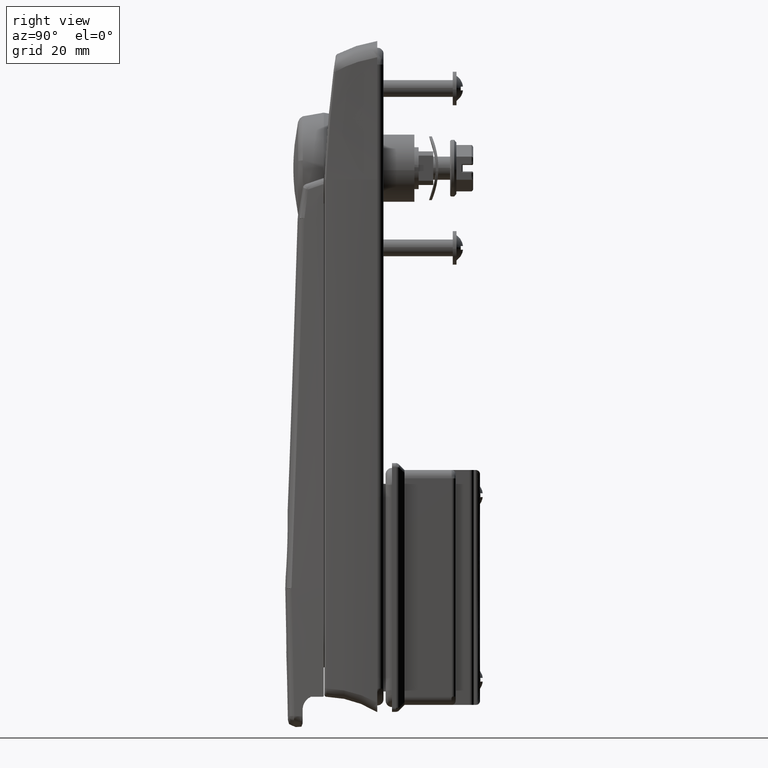
[diagram: clean part render]
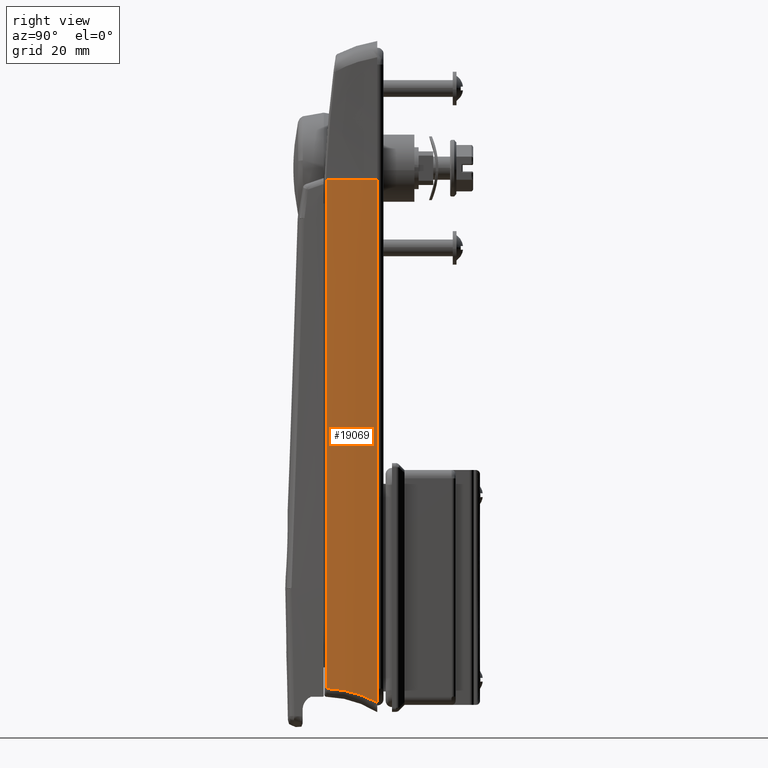
[diagram: same view with one face highlighted and labeled with its STEP entity id]
A machine part, right view. The second image highlights one B-rep face of the part: STEP entity #19069.
In plain terms, the highlighted face is a freeform B-spline surface patch.
Its self-contained STEP definition (entity closure, byte-faithful):
#13861=CARTESIAN_POINT('',(-12.188371007072320,-15.802942163122349,-2.741120213272555));
#13862=VERTEX_POINT('',#13861);
#13886=CARTESIAN_POINT('',(-12.187701613614900,-15.803056096875800,-2.741120213272561));
#13887=VERTEX_POINT('',#13886);
#13888=CARTESIAN_POINT('',(-12.187701613614900,-15.803056096875800,-2.741120213272561));
#13889=CARTESIAN_POINT('',(-12.187924744904020,-15.803018119763269,-2.741120213272592));
#13890=CARTESIAN_POINT('',(-12.188147876056499,-15.802980141845451,-2.741120213272589));
#13891=CARTESIAN_POINT('',(-12.188371007072320,-15.802942163122349,-2.741120213272555));
#13892=B_SPLINE_CURVE_WITH_KNOTS('',3,(#13888,#13889,#13890,#13891),.UNSPECIFIED.,.T.,.U.,(4,4),(0.0,0.988298195347934),.UNSPECIFIED.);
#13893=EDGE_CURVE('',#13887,#13862,#13892,.T.);
#13923=CARTESIAN_POINT('',(-12.188371007073281,-15.946216468357351,-124.013165944178400));
#13924=VERTEX_POINT('',#13923);
#13938=CARTESIAN_POINT('',(-12.188371007072320,-15.802942163122349,-2.741120213272555));
#13939=CARTESIAN_POINT('',(-12.188371007073281,-15.946216468357351,-124.013165944178400));
#13940=QUASI_UNIFORM_CURVE('',1,(#13938,#13939),.UNSPECIFIED.,.F.,.U.);
#13941=EDGE_CURVE('',#13862,#13924,#13940,.T.);
#14932=CARTESIAN_POINT('',(1.959946E-009,-17.197324400774551,-127.378146501003600));
#14933=VERTEX_POINT('',#14932);
#14934=CARTESIAN_POINT('',(-12.188371007073281,-15.946216468357321,-124.013165944178400));
#14935=CARTESIAN_POINT('',(-11.660827455770461,-16.036029767662569,-124.030964103327090));
#14936=CARTESIAN_POINT('',(-11.132955458493679,-16.121164954596281,-124.064189252755600));
#14937=CARTESIAN_POINT('',(-10.080264435861810,-16.281633326459581,-124.161406906020300));
#14938=CARTESIAN_POINT('',(-9.555016737635455,-16.357042679733748,-124.225402920556900));
#14939=CARTESIAN_POINT('',(-8.506778133798848,-16.498396268536769,-124.384463394395890));
#14940=CARTESIAN_POINT('',(-7.983400972286345,-16.564375247299640,-124.479646735960600));
#14941=CARTESIAN_POINT('',(-6.944199636809592,-16.686470696460152,-124.700453448080490));
#14942=CARTESIAN_POINT('',(-6.427779340531703,-16.742674503476810,-124.826142444685000));
#14943=CARTESIAN_POINT('',(-5.401393865853476,-16.845762879241590,-125.108314604520100));
#14944=CARTESIAN_POINT('',(-4.890822618799604,-16.892689360694298,-125.265037183447300));
#14945=CARTESIAN_POINT('',(-3.881828147917116,-16.977147357500542,-125.607815587584500));
#14946=CARTESIAN_POINT('',(-2.883918923575714,-17.052338034594779,-125.980140032348900));
#14947=CARTESIAN_POINT('',(-1.908298268536030,-17.110129690990330,-126.411653360038100));
#14948=CARTESIAN_POINT('',(-1.185078512856308,-17.147357534597809,-126.757758275037900));
#14949=CARTESIAN_POINT('',(-0.945403931325606,-17.158746899077649,-126.876889613689800));
#14950=CARTESIAN_POINT('',(-0.469964862930379,-17.179513047156181,-127.122162438189700));
#14951=CARTESIAN_POINT('',(-0.234016736042114,-17.188898889925220,-127.248394096373600));
#14952=CARTESIAN_POINT('',(2.613244E-009,-17.197324400774551,-127.378146501003600));
#14953=B_SPLINE_CURVE_WITH_KNOTS('',3,(#14934,#14935,#14936,#14937,#14938,#14939,#14940,#14941,#14942,#14943,#14944,#14945,#14946,#14947,#14948,#14949,#14950,#14951,#14952),.UNSPECIFIED.,.F.,.U.,(4,2,2,2,2,2,1,2,2,4),(0.0,0.125000000000000,0.250000000000000,0.375000000000000,0.500000000000000,0.625000000000000,0.750000000000000,0.875000000000000,0.937500000000000,1.0),.UNSPECIFIED.);
#14954=EDGE_CURVE('',#13924,#14933,#14953,.T.);
#18916=CARTESIAN_POINT('',(0.000000144554687,-17.050074719233201,-2.741120310253765));
#18917=VERTEX_POINT('',#18916);
#18918=CARTESIAN_POINT('',(-12.187701613614900,-15.803056096875791,-2.741120213272557));
#18919=CARTESIAN_POINT('',(-8.158804179944150,-16.488777101261011,-2.741120213272556));
#18920=CARTESIAN_POINT('',(-4.084294711901436,-16.905699582189211,-2.741120213272556));
#18921=CARTESIAN_POINT('',(0.000000144937946,-17.050074614967201,-2.741120213272555));
#18922=B_SPLINE_CURVE_WITH_KNOTS('',3,(#18918,#18919,#18920,#18921),.UNSPECIFIED.,.F.,.U.,(4,4),(0.033345218867171,1.0),.UNSPECIFIED.);
#18923=EDGE_CURVE('',#13887,#18917,#18922,.T.);
#19041=CARTESIAN_POINT('',(-12.188371007072320,-15.802942163122349,-2.741120213272555));
#19042=CARTESIAN_POINT('',(-8.159255494735811,-16.488730919824260,-2.741120213272555));
#19043=CARTESIAN_POINT('',(-4.084520911253708,-16.905691586307420,-2.741120213272555));
#19044=CARTESIAN_POINT('',(0.000000144937946,-17.050074614967201,-2.741120213272555));
#19045=CARTESIAN_POINT('',(-12.188371008639860,-15.852319925993420,-44.536069695091740));
#19046=CARTESIAN_POINT('',(-8.159255511487631,-16.538108680201962,-44.536069695091740));
#19047=CARTESIAN_POINT('',(-4.084520943526377,-16.955069346219620,-44.536069695091740));
#19048=CARTESIAN_POINT('',(0.000000097211731,-17.099452376474598,-44.536069695091740));
#19049=CARTESIAN_POINT('',(-12.188371010207410,-15.901697688864489,-86.331019176910885));
#19050=CARTESIAN_POINT('',(-8.159255528239463,-16.587486440579621,-86.331019176910885));
#19051=CARTESIAN_POINT('',(-4.084520975799046,-17.004447106131881,-86.331019176910885));
#19052=CARTESIAN_POINT('',(0.000000049485515,-17.148830137981999,-86.331019176910885));
#19053=CARTESIAN_POINT('',(-12.188371011774951,-15.951075451735520,-128.125968658730100));
#19054=CARTESIAN_POINT('',(-8.159255544991295,-16.636864200957319,-128.125968658730100));
#19055=CARTESIAN_POINT('',(-4.084521008071710,-17.053824866044138,-128.125968658730100));
#19056=CARTESIAN_POINT('',(1.759300E-009,-17.198207899489400,-128.125968658730100));
#19057=B_SPLINE_SURFACE_WITH_KNOTS('',3,3,((#19041,#19045,#19049,#19053),(#19042,#19046,#19050,#19054),(#19043,#19047,#19051,#19055),(#19044,#19048,#19052,#19056)),.UNSPECIFIED.,.F.,.F.,.U.,(4,4),(4,4),(0.0,12.261216434634109),(0.0,125.384935949904100),.UNSPECIFIED.);
#19058=ORIENTED_EDGE('',*,*,#18923,.F.);
#19059=ORIENTED_EDGE('',*,*,#13893,.T.);
#19060=ORIENTED_EDGE('',*,*,#13941,.T.);
#19061=ORIENTED_EDGE('',*,*,#14954,.T.);
#19062=CARTESIAN_POINT('',(0.000000144554687,-17.050074719233201,-2.741120310253765));
#19063=CARTESIAN_POINT('',(1.306643E-009,-17.197324400774541,-127.378146501003600));
#19064=B_SPLINE_CURVE_WITH_KNOTS('',1,(#19062,#19063),.UNSPECIFIED.,.F.,.U.,(2,2),(0.018029924202161,0.999999999234951),.UNSPECIFIED.);
#19065=EDGE_CURVE('',#18917,#14933,#19064,.T.);
#19066=ORIENTED_EDGE('',*,*,#19065,.F.);
#19067=EDGE_LOOP('',(#19058,#19059,#19060,#19061,#19066));
#19068=FACE_OUTER_BOUND('',#19067,.T.);
#19069=ADVANCED_FACE('',(#19068),#19057,.F.);